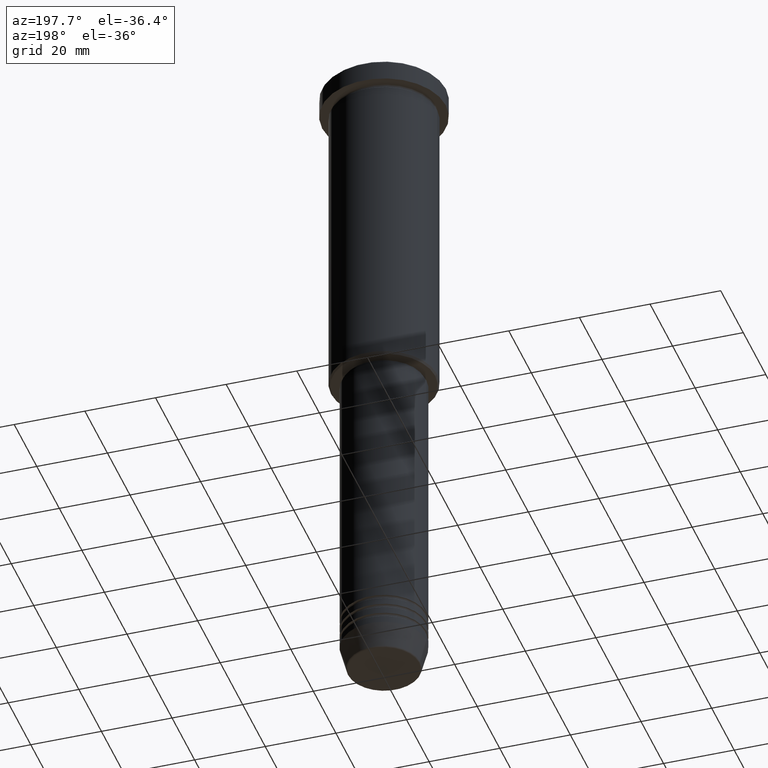
[diagram: clean part render]
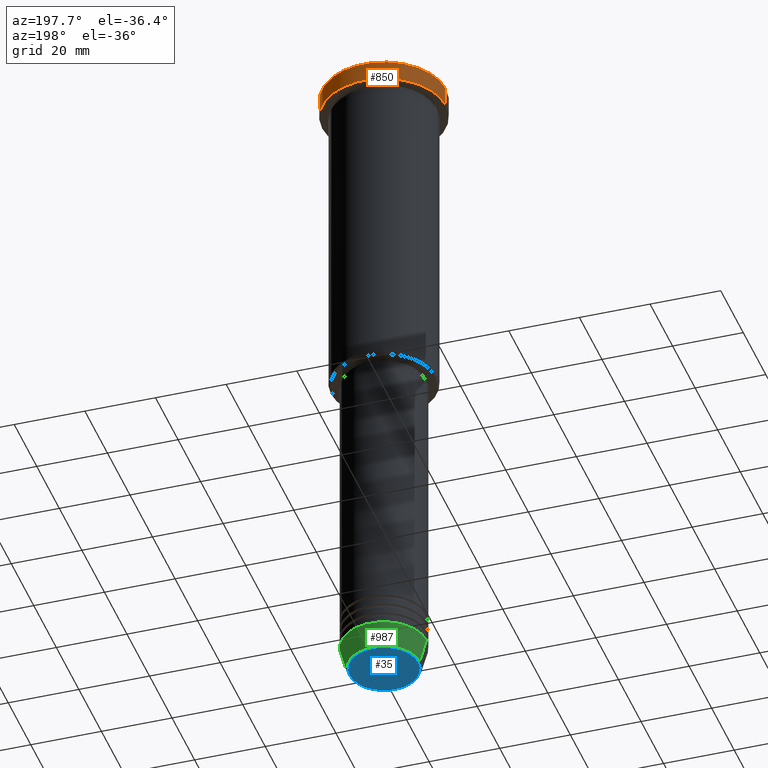
[diagram: same view with three faces highlighted in distinct colors, each labeled with its STEP entity id]
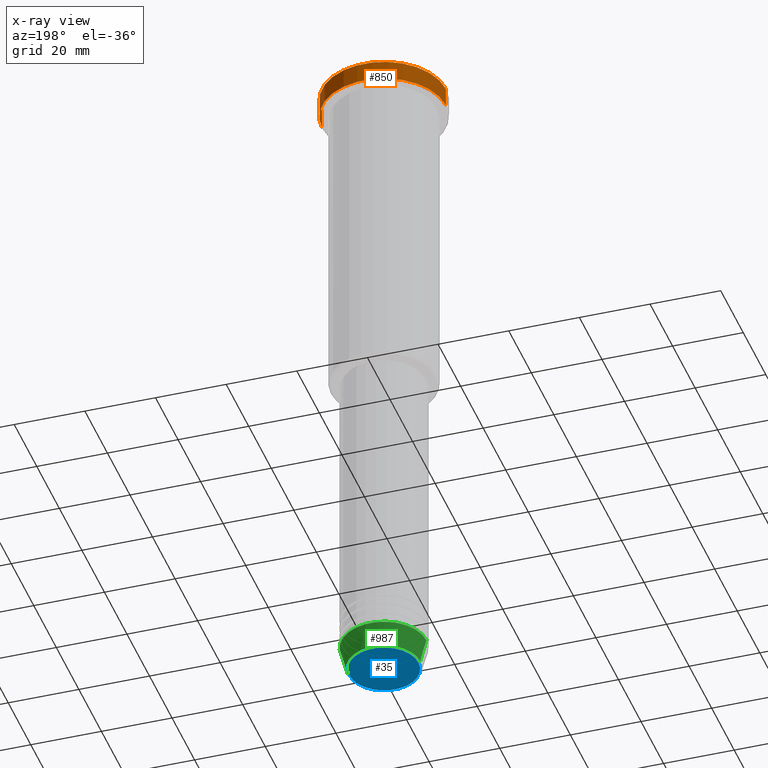
[diagram: x-ray of the same camera — body ghosted, the three highlighted faces saturated]
A machine part, auxiliary view with three faces highlighted in distinct colors.
The next image is the same camera in x-ray (body ghosted, the three faces saturated) — at least one of them is partly hidden behind the body in this view.
Their STEP definitions:

[orange] entity #850 — the highlighted cylindrical surface (partial cylindrical patch) has radius 17.5 mm, axis along (-0, -0, 1).
#13 = EDGE_CURVE ( 'NONE', #180, #391, #402, .T. ) ;
#51 = DIRECTION ( 'NONE',  ( 0.000000000000000000, 0.000000000000000000, -1.000000000000000000 ) ) ;
#52 = AXIS2_PLACEMENT_3D ( 'NONE', #173, #51, #418 ) ;
#71 = CYLINDRICAL_SURFACE ( 'NONE', #994, 17.50000000000000000 ) ;
#116 = CIRCLE ( 'NONE', #52, 17.50000000000000000 ) ;
#143 = CARTESIAN_POINT ( 'NONE',  ( -17.50000000000000000, 2.143131898507868248E-15, -5.999999999999995559 ) ) ;
#155 = EDGE_CURVE ( 'NONE', #658, #671, #116, .T. ) ;
#173 = CARTESIAN_POINT ( 'NONE',  ( 0.000000000000000000, 0.000000000000000000, -0.5000000000000003331 ) ) ;
#180 = VERTEX_POINT ( 'NONE', #541 ) ;
#190 = LINE ( 'NONE', #290, #1083 ) ;
#290 = CARTESIAN_POINT ( 'NONE',  ( 17.50000000000000000, 0.000000000000000000, 0.000000000000000000 ) ) ;
#294 = ORIENTED_EDGE ( 'NONE', *, *, #155, .T. ) ;
#339 = DIRECTION ( 'NONE',  ( 1.000000000000000000, 0.000000000000000000, 0.000000000000000000 ) ) ;
#391 = VERTEX_POINT ( 'NONE', #143 ) ;
#402 = CIRCLE ( 'NONE', #536, 17.50000000000000000 ) ;
#418 = DIRECTION ( 'NONE',  ( 1.000000000000000000, 0.000000000000000000, 0.000000000000000000 ) ) ;
#447 = CARTESIAN_POINT ( 'NONE',  ( 17.50000000000000000, 0.000000000000000000, -0.5000000000000003331 ) ) ;
#520 = ORIENTED_EDGE ( 'NONE', *, *, #13, .T. ) ;
#536 = AXIS2_PLACEMENT_3D ( 'NONE', #959, #863, #339 ) ;
#541 = CARTESIAN_POINT ( 'NONE',  ( 17.50000000000000000, 0.000000000000000000, -5.999999999999995559 ) ) ;
#554 = ORIENTED_EDGE ( 'NONE', *, *, #910, .T. ) ;
#627 = LINE ( 'NONE', #714, #641 ) ;
#628 = CARTESIAN_POINT ( 'NONE',  ( -17.50000000000000000, 2.143131898507868248E-15, -0.5000000000000003331 ) ) ;
#641 = VECTOR ( 'NONE', #1093, 1000.000000000000000 ) ;
#658 = VERTEX_POINT ( 'NONE', #628 ) ;
#671 = VERTEX_POINT ( 'NONE', #447 ) ;
#714 = CARTESIAN_POINT ( 'NONE',  ( -17.50000000000000000, 2.143131898507868248E-15, 0.000000000000000000 ) ) ;
#786 = ORIENTED_EDGE ( 'NONE', *, *, #795, .F. ) ;
#795 = EDGE_CURVE ( 'NONE', #180, #671, #190, .T. ) ;
#807 = CARTESIAN_POINT ( 'NONE',  ( 0.000000000000000000, 0.000000000000000000, 0.000000000000000000 ) ) ;
#829 = EDGE_LOOP ( 'NONE', ( #520, #554, #294, #786 ) ) ;
#850 = ADVANCED_FACE ( 'NONE', ( #864 ), #71, .T. ) ;
#863 = DIRECTION ( 'NONE',  ( -0.000000000000000000, -0.000000000000000000, 1.000000000000000000 ) ) ;
#864 = FACE_OUTER_BOUND ( 'NONE', #829, .T. ) ;
#910 = EDGE_CURVE ( 'NONE', #391, #658, #627, .T. ) ;
#959 = CARTESIAN_POINT ( 'NONE',  ( 0.000000000000000000, 0.000000000000000000, -5.999999999999995559 ) ) ;
#994 = AXIS2_PLACEMENT_3D ( 'NONE', #807, #1166, #998 ) ;
#998 = DIRECTION ( 'NONE',  ( 1.000000000000000000, 0.000000000000000000, 0.000000000000000000 ) ) ;
#1083 = VECTOR ( 'NONE', #1106, 1000.000000000000000 ) ;
#1093 = DIRECTION ( 'NONE',  ( -0.000000000000000000, -0.000000000000000000, 1.000000000000000000 ) ) ;
#1106 = DIRECTION ( 'NONE',  ( -0.000000000000000000, -0.000000000000000000, 1.000000000000000000 ) ) ;
#1166 = DIRECTION ( 'NONE',  ( -0.000000000000000000, -0.000000000000000000, 1.000000000000000000 ) ) ;

[blue] entity #35 — the highlighted planar face has unit normal (0, -0, 1).
#35 = ADVANCED_FACE ( 'NONE', ( #761 ), #672, .F. ) ;
#75 = CARTESIAN_POINT ( 'NONE',  ( 9.740692158992667160, 0.000000000000000000, -191.0000000000000000 ) ) ;
#101 = ORIENTED_EDGE ( 'NONE', *, *, #1003, .T. ) ;
#113 = CARTESIAN_POINT ( 'NONE',  ( -9.740692158992667160, 1.222463696683475393E-15, -191.0000000000000000 ) ) ;
#241 = DIRECTION ( 'NONE',  ( 1.000000000000000000, 0.000000000000000000, 0.000000000000000000 ) ) ;
#254 = VERTEX_POINT ( 'NONE', #113 ) ;
#271 = DIRECTION ( 'NONE',  ( 0.000000000000000000, -0.000000000000000000, 1.000000000000000000 ) ) ;
#336 = CIRCLE ( 'NONE', #1033, 9.740692158992667160 ) ;
#350 = ORIENTED_EDGE ( 'NONE', *, *, #1051, .T. ) ;
#457 = AXIS2_PLACEMENT_3D ( 'NONE', #577, #923, #753 ) ;
#477 = DIRECTION ( 'NONE',  ( 1.000000000000000000, 0.000000000000000000, 0.000000000000000000 ) ) ;
#577 = CARTESIAN_POINT ( 'NONE',  ( 0.000000000000000000, 0.000000000000000000, -191.0000000000000000 ) ) ;
#672 = PLANE ( 'NONE',  #683 ) ;
#683 = AXIS2_PLACEMENT_3D ( 'NONE', #1038, #271, #241 ) ;
#753 = DIRECTION ( 'NONE',  ( 1.000000000000000000, 0.000000000000000000, 0.000000000000000000 ) ) ;
#761 = FACE_OUTER_BOUND ( 'NONE', #1037, .T. ) ;
#801 = CARTESIAN_POINT ( 'NONE',  ( 0.000000000000000000, 0.000000000000000000, -191.0000000000000000 ) ) ;
#876 = CIRCLE ( 'NONE', #457, 9.740692158992667160 ) ;
#923 = DIRECTION ( 'NONE',  ( 0.000000000000000000, 0.000000000000000000, -1.000000000000000000 ) ) ;
#983 = DIRECTION ( 'NONE',  ( 0.000000000000000000, 0.000000000000000000, -1.000000000000000000 ) ) ;
#1003 = EDGE_CURVE ( 'NONE', #254, #1170, #876, .T. ) ;
#1033 = AXIS2_PLACEMENT_3D ( 'NONE', #801, #983, #477 ) ;
#1037 = EDGE_LOOP ( 'NONE', ( #350, #101 ) ) ;
#1038 = CARTESIAN_POINT ( 'NONE',  ( 0.000000000000000000, 0.000000000000000000, -191.0000000000000000 ) ) ;
#1051 = EDGE_CURVE ( 'NONE', #1170, #254, #336, .T. ) ;
#1170 = VERTEX_POINT ( 'NONE', #75 ) ;

[green] entity #987 — the highlighted conical surface has half-angle 15 deg.
#11 = CARTESIAN_POINT ( 'NONE',  ( 10.22365507213719660, 0.000000000000000000, -190.6294095225512706 ) ) ;
#92 = VERTEX_POINT ( 'NONE', #769 ) ;
#150 = CARTESIAN_POINT ( 'NONE',  ( -12.00000000000000000, 1.469576158976823947E-15, -184.0000000000000284 ) ) ;
#152 = DIRECTION ( 'NONE',  ( 1.000000000000000000, 0.000000000000000000, 0.000000000000000000 ) ) ;
#185 = ORIENTED_EDGE ( 'NONE', *, *, #265, .F. ) ;
#221 = DIRECTION ( 'NONE',  ( 0.2588190451025213501, 0.000000000000000000, 0.9659258262890680902 ) ) ;
#232 = LINE ( 'NONE', #150, #951 ) ;
#240 = FACE_OUTER_BOUND ( 'NONE', #413, .T. ) ;
#249 = CIRCLE ( 'NONE', #500, 10.22365507213719660 ) ;
#265 = EDGE_CURVE ( 'NONE', #857, #576, #840, .T. ) ;
#286 = ORIENTED_EDGE ( 'NONE', *, *, #532, .T. ) ;
#305 = EDGE_CURVE ( 'NONE', #857, #92, #249, .T. ) ;
#412 = CARTESIAN_POINT ( 'NONE',  ( 0.000000000000000000, 0.000000000000000000, -190.6294095225512706 ) ) ;
#413 = EDGE_LOOP ( 'NONE', ( #1053, #286, #903, #185 ) ) ;
#414 = CARTESIAN_POINT ( 'NONE',  ( 0.000000000000000000, 0.000000000000000000, -184.0000000000000284 ) ) ;
#438 = CIRCLE ( 'NONE', #1057, 12.00000000000000000 ) ;
#458 = EDGE_CURVE ( 'NONE', #576, #1107, #438, .T. ) ;
#500 = AXIS2_PLACEMENT_3D ( 'NONE', #412, #912, #648 ) ;
#504 = DIRECTION ( 'NONE',  ( -0.2588190451025213501, 3.169619151431772337E-17, 0.9659258262890680902 ) ) ;
#532 = EDGE_CURVE ( 'NONE', #92, #1107, #232, .T. ) ;
#576 = VERTEX_POINT ( 'NONE', #694 ) ;
#584 = DIRECTION ( 'NONE',  ( -0.000000000000000000, -0.000000000000000000, 1.000000000000000000 ) ) ;
#648 = DIRECTION ( 'NONE',  ( 1.000000000000000000, 0.000000000000000000, 0.000000000000000000 ) ) ;
#694 = CARTESIAN_POINT ( 'NONE',  ( 12.00000000000000000, 0.000000000000000000, -184.0000000000000284 ) ) ;
#718 = CARTESIAN_POINT ( 'NONE',  ( -12.00000000000000000, 1.469576158976823947E-15, -184.0000000000000284 ) ) ;
#747 = CARTESIAN_POINT ( 'NONE',  ( 12.00000000000000000, 0.000000000000000000, -184.0000000000000284 ) ) ;
#765 = CONICAL_SURFACE ( 'NONE', #783, 12.00000000000000000, 0.2617993877991500740 ) ;
#769 = CARTESIAN_POINT ( 'NONE',  ( -10.22365507213719837, 1.360806402472383336E-15, -190.6294095225512706 ) ) ;
#783 = AXIS2_PLACEMENT_3D ( 'NONE', #414, #584, #847 ) ;
#840 = LINE ( 'NONE', #747, #1182 ) ;
#847 = DIRECTION ( 'NONE',  ( 1.000000000000000000, 0.000000000000000000, 0.000000000000000000 ) ) ;
#857 = VERTEX_POINT ( 'NONE', #11 ) ;
#903 = ORIENTED_EDGE ( 'NONE', *, *, #458, .F. ) ;
#912 = DIRECTION ( 'NONE',  ( -0.000000000000000000, -0.000000000000000000, 1.000000000000000000 ) ) ;
#946 = CARTESIAN_POINT ( 'NONE',  ( 0.000000000000000000, 0.000000000000000000, -184.0000000000000284 ) ) ;
#951 = VECTOR ( 'NONE', #504, 1000.000000000000000 ) ;
#987 = ADVANCED_FACE ( 'NONE', ( #240 ), #765, .T. ) ;
#1041 = DIRECTION ( 'NONE',  ( -0.000000000000000000, -0.000000000000000000, 1.000000000000000000 ) ) ;
#1053 = ORIENTED_EDGE ( 'NONE', *, *, #305, .T. ) ;
#1057 = AXIS2_PLACEMENT_3D ( 'NONE', #946, #1041, #152 ) ;
#1107 = VERTEX_POINT ( 'NONE', #718 ) ;
#1182 = VECTOR ( 'NONE', #221, 1000.000000000000000 ) ;